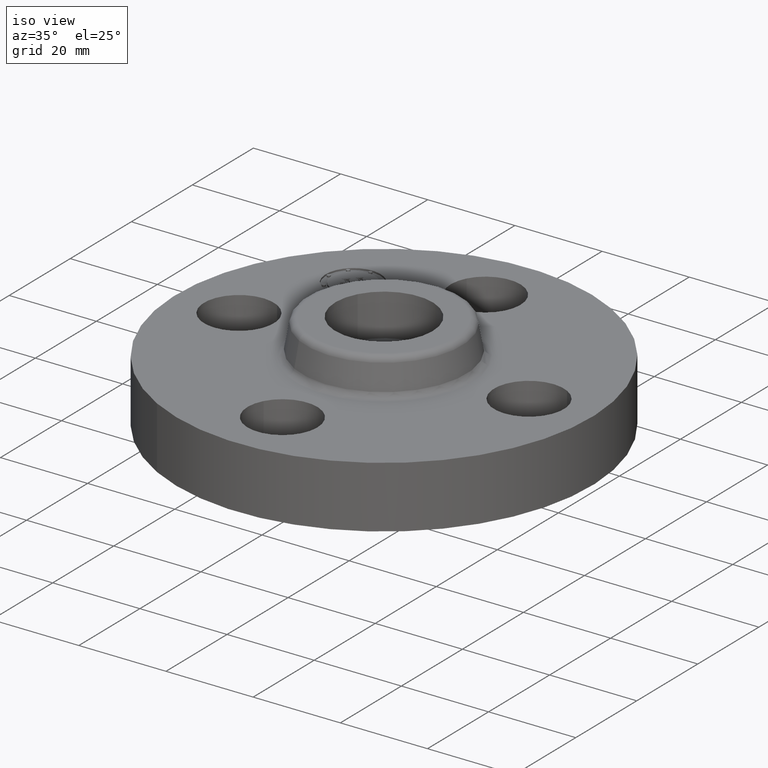
[diagram: clean part render]
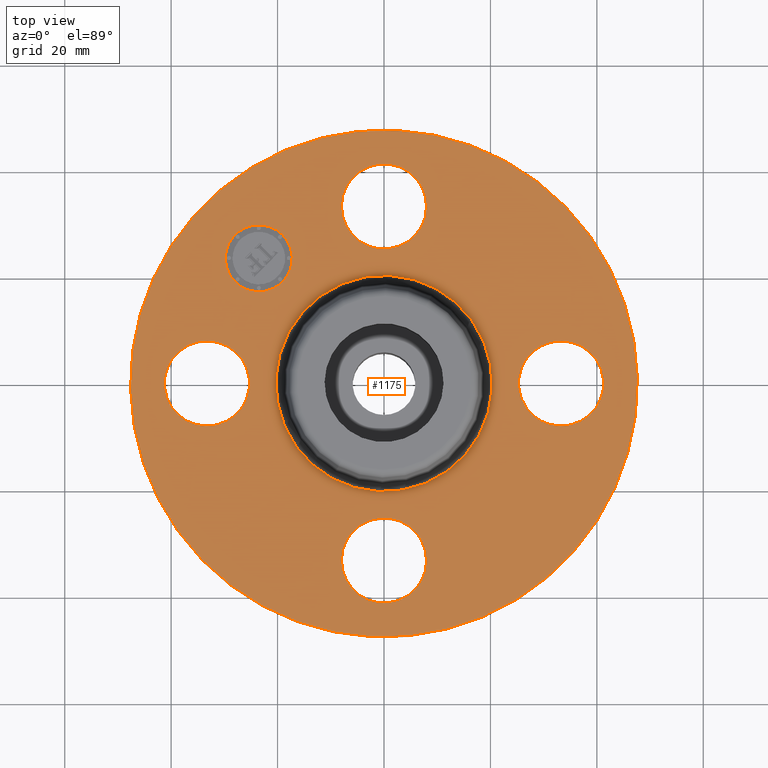
[diagram: tour spotlight — one face highlighted and labeled with its STEP entity id]
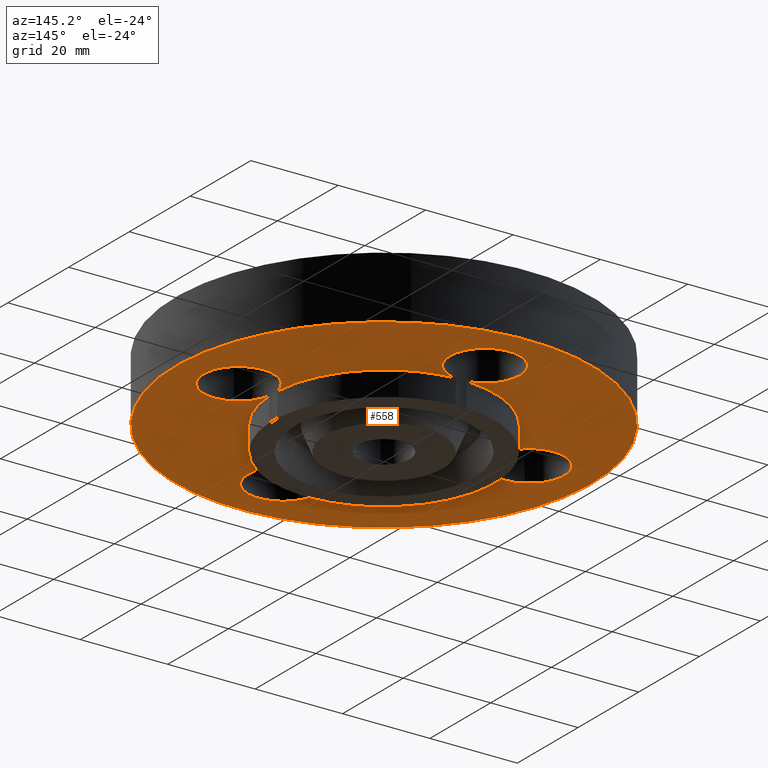
[diagram: tour spotlight — one face highlighted and labeled with its STEP entity id]
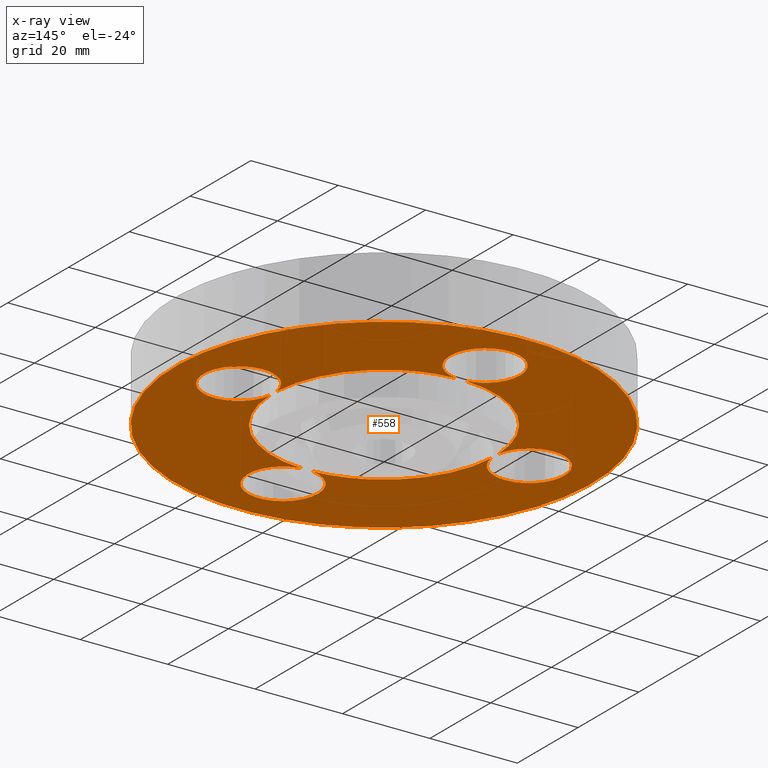
[diagram: x-ray of the same camera — body ghosted, this tour face saturated]
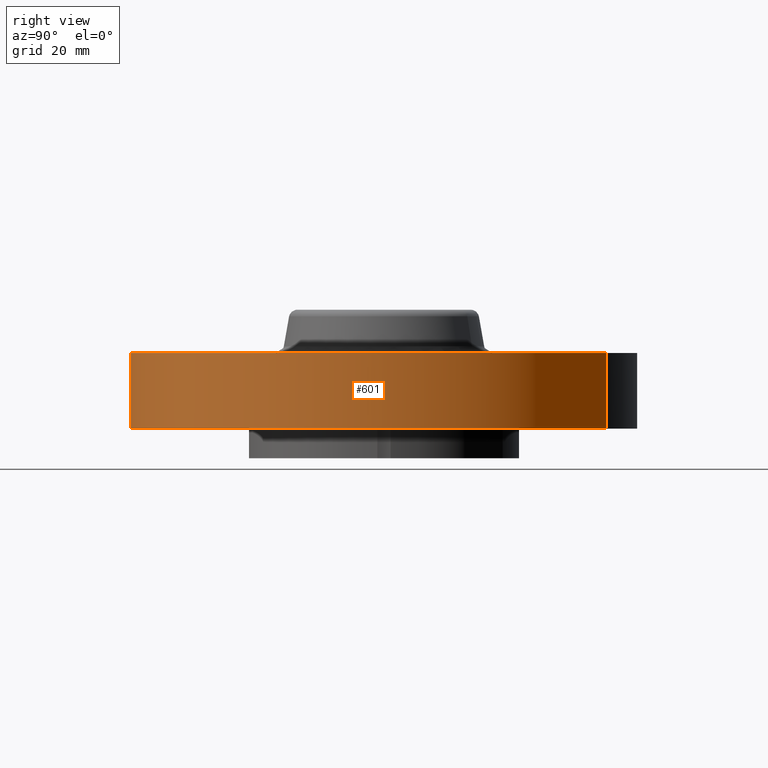
[diagram: tour spotlight — one face highlighted and labeled with its STEP entity id]
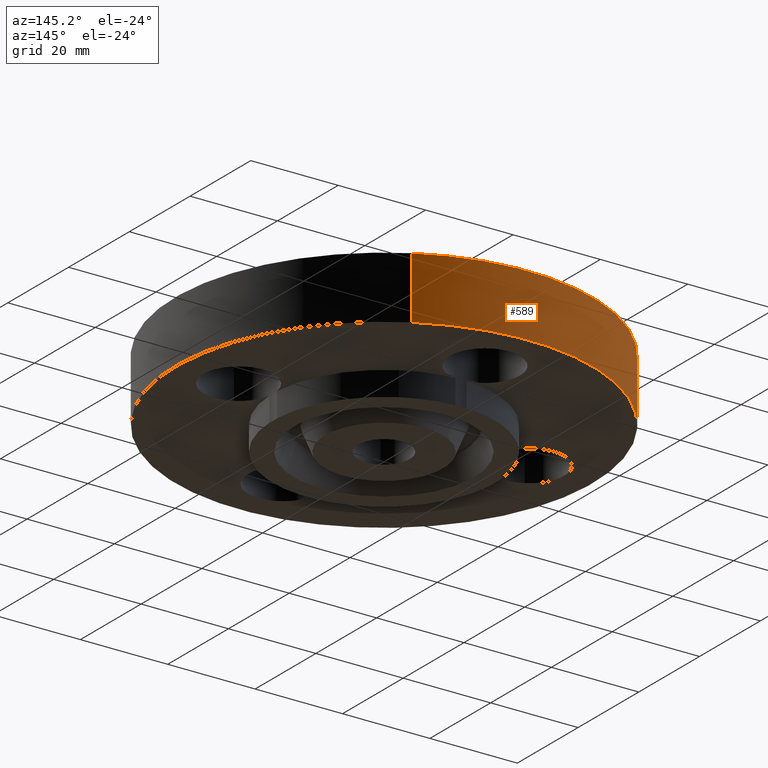
[diagram: tour spotlight — one face highlighted and labeled with its STEP entity id]
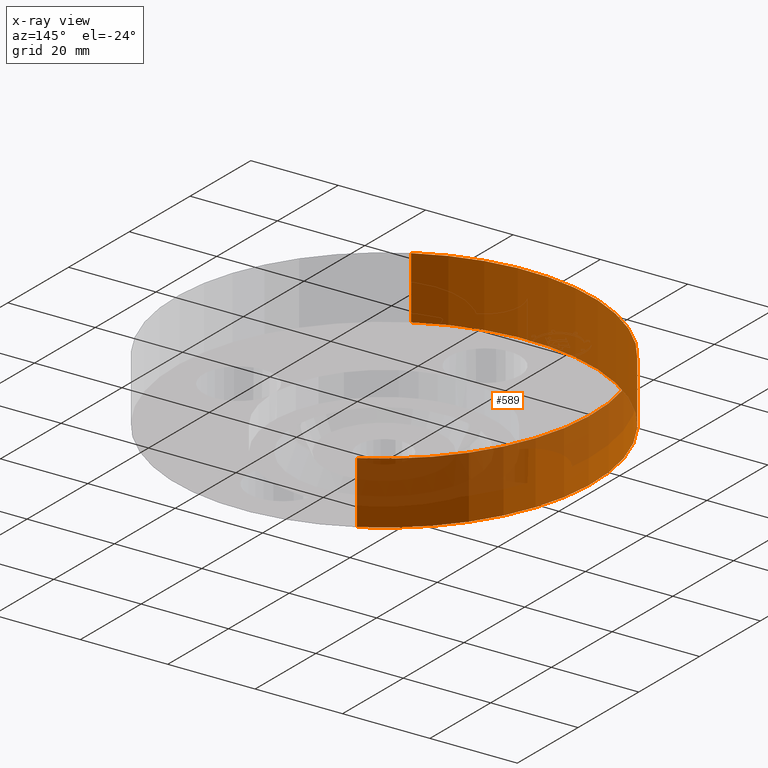
[diagram: x-ray of the same camera — body ghosted, this tour face saturated]
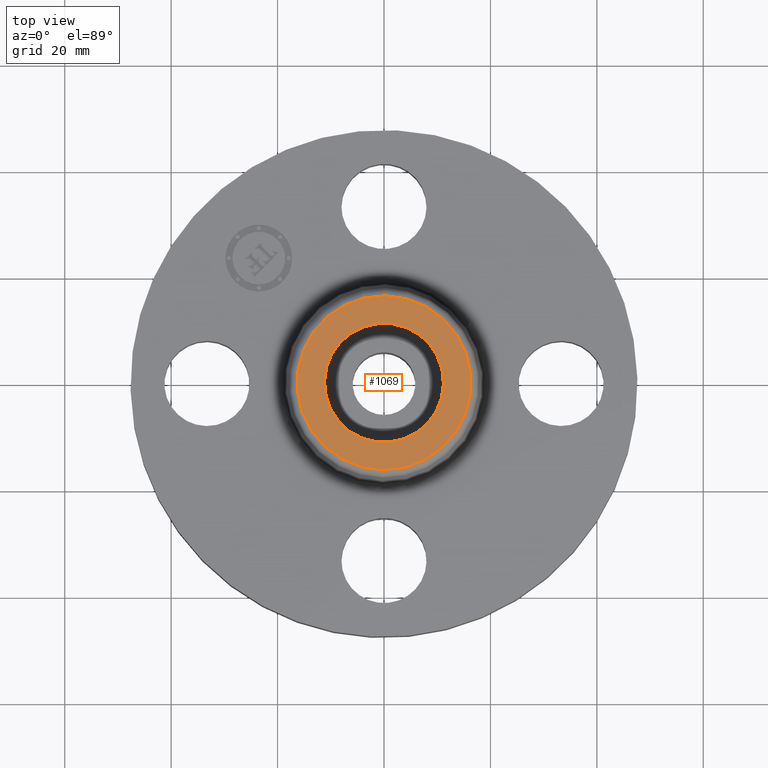
[diagram: tour spotlight — one face highlighted and labeled with its STEP entity id]
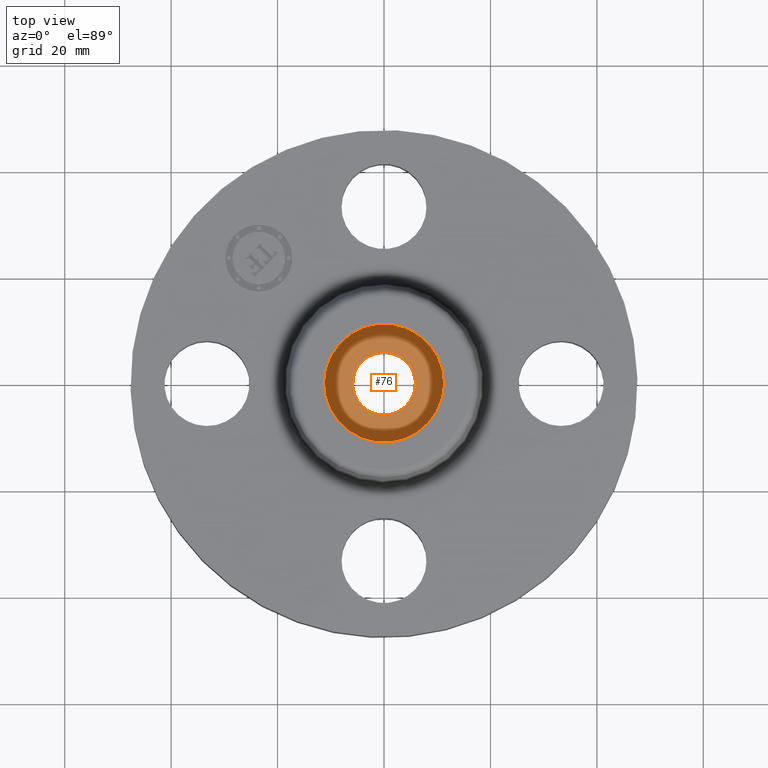
[diagram: tour spotlight — one face highlighted and labeled with its STEP entity id]
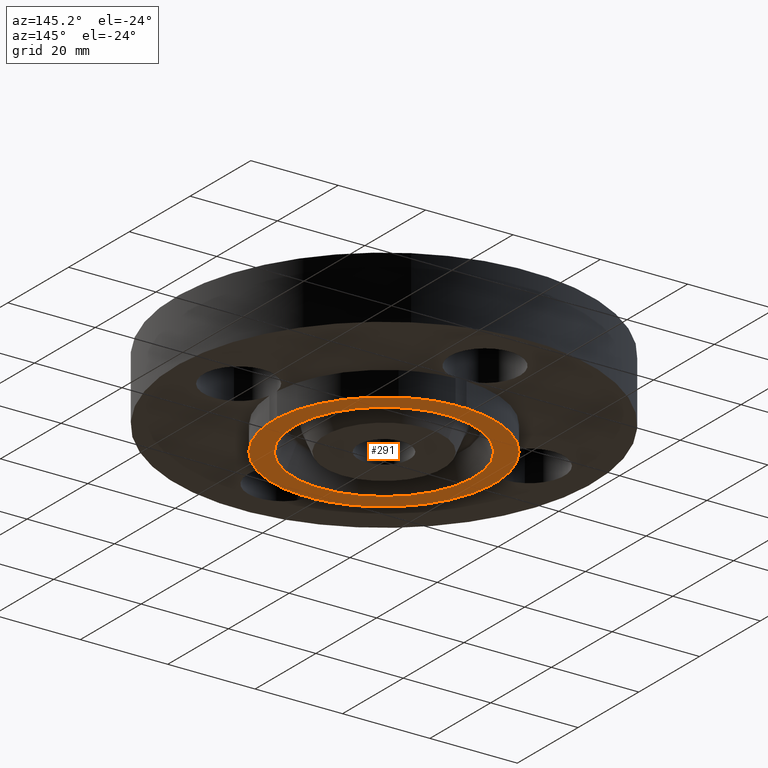
[diagram: tour spotlight — one face highlighted and labeled with its STEP entity id]
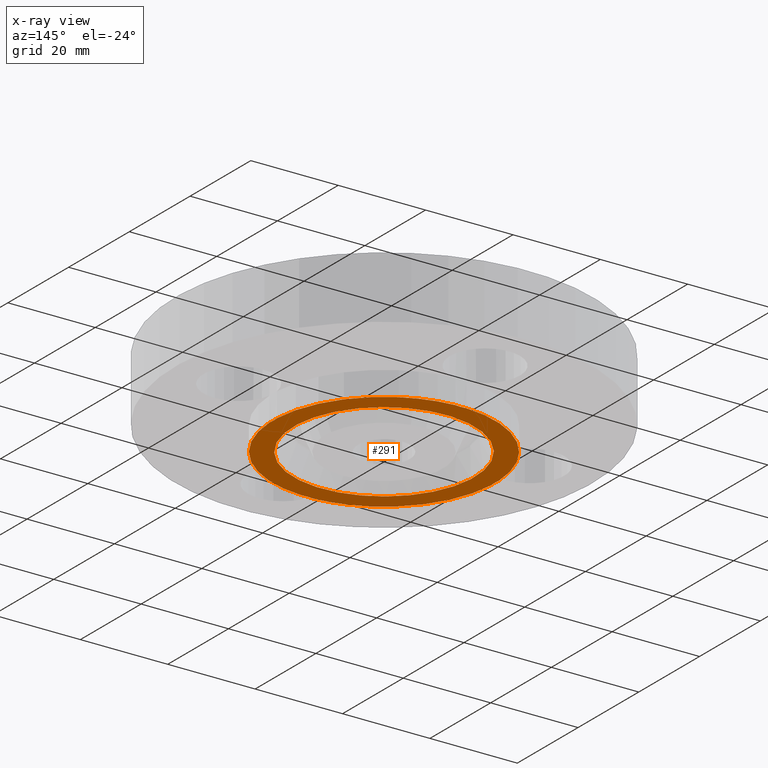
[diagram: x-ray of the same camera — body ghosted, this tour face saturated]
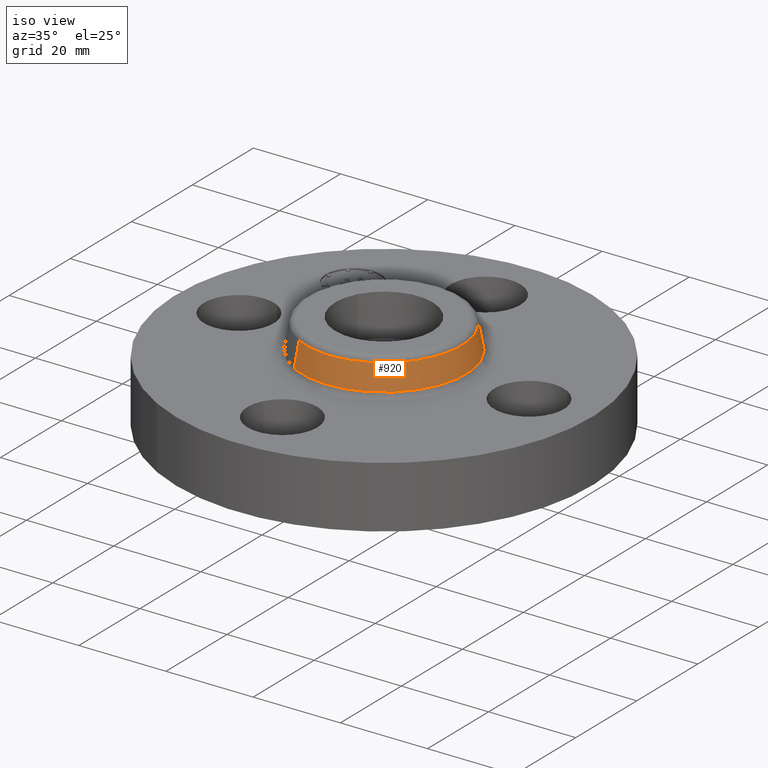
[diagram: tour spotlight — one face highlighted and labeled with its STEP entity id]
A machine part: a face-by-face anatomy tour. The part has 426 B-rep faces; the first image is the clean iso view, then the 8 largest visible faces are spotlighted one at a time (largest first), each with its STEP entity span.

Face 1 — top view, entity #1175. In plain terms, the highlighted planar face has unit normal (0, 0, -1).
Definition (entity closure, byte-faithful):
#573=AXIS2_PLACEMENT_3D('Circle Axis2P3D',#571,#572,$) ;
#592=AXIS2_PLACEMENT_3D('Circle Axis2P3D',#590,#591,$) ;
#623=AXIS2_PLACEMENT_3D('Circle Axis2P3D',#621,#622,$) ;
#654=AXIS2_PLACEMENT_3D('Circle Axis2P3D',#652,#653,$) ;
#685=AXIS2_PLACEMENT_3D('Circle Axis2P3D',#683,#684,$) ;
#716=AXIS2_PLACEMENT_3D('Circle Axis2P3D',#714,#715,$) ;
#728=AXIS2_PLACEMENT_3D('Circle Axis2P3D',#726,#727,$) ;
#744=AXIS2_PLACEMENT_3D('Circle Axis2P3D',#742,#743,$) ;
#760=AXIS2_PLACEMENT_3D('Circle Axis2P3D',#758,#759,$) ;
#776=AXIS2_PLACEMENT_3D('Circle Axis2P3D',#774,#775,$) ;
#797=AXIS2_PLACEMENT_3D('Circle Axis2P3D',#795,#796,$) ;
#832=AXIS2_PLACEMENT_3D('Circle Axis2P3D',#830,#831,$) ;
#1131=AXIS2_PLACEMENT_3D('Plane Axis2P3D',#1128,#1129,#1130) ;
#1159=AXIS2_PLACEMENT_3D('Circle Axis2P3D',#1157,#1158,$) ;
#1168=AXIS2_PLACEMENT_3D('Circle Axis2P3D',#1166,#1167,$) ;
#568=CARTESIAN_POINT('Vertex',(-0.898922884886,-1.64546730355,0.560000000002)) ;
#571=CARTESIAN_POINT('Axis2P3D Location',(0.,0.,0.560000000002)) ;
#575=CARTESIAN_POINT('Vertex',(0.898922884886,1.64546730355,0.560000000002)) ;
#590=CARTESIAN_POINT('Axis2P3D Location',(0.,0.,0.560000000002)) ;
#611=CARTESIAN_POINT('Vertex',(0.276438506997,-1.46101904467,0.560000000002)) ;
#618=CARTESIAN_POINT('Vertex',(-0.276438506997,-1.15898095534,0.560000000002)) ;
#621=CARTESIAN_POINT('Axis2P3D Location',(1.60428730689E-016,-1.31000000001,0.560000000002)) ;
#642=CARTESIAN_POINT('Vertex',(-1.46101904467,-0.276438506997,0.560000000002)) ;
#649=CARTESIAN_POINT('Vertex',(-1.15898095534,0.276438506997,0.560000000002)) ;
#652=CARTESIAN_POINT('Axis2P3D Location',(-1.31000000001,-2.40643096033E-016,0.560000000002)) ;
#673=CARTESIAN_POINT('Vertex',(-0.276438506997,1.46101904467,0.560000000002)) ;
#680=CARTESIAN_POINT('Vertex',(0.276438506997,1.15898095534,0.560000000002)) ;
#683=CARTESIAN_POINT('Axis2P3D Location',(0.,1.31000000001,0.560000000002)) ;
#704=CARTESIAN_POINT('Vertex',(1.46101904467,0.276438506997,0.560000000002)) ;
#711=CARTESIAN_POINT('Vertex',(1.15898095534,-0.276438506997,0.560000000002)) ;
#714=CARTESIAN_POINT('Axis2P3D Location',(1.31000000001,8.02143653445E-017,0.560000000002)) ;
#726=CARTESIAN_POINT('Axis2P3D Location',(1.31000000001,8.02143653445E-017,0.560000000002)) ;
#742=CARTESIAN_POINT('Axis2P3D Location',(0.,1.31000000001,0.560000000002)) ;
#758=CARTESIAN_POINT('Axis2P3D Location',(-1.31000000001,-2.40643096033E-016,0.560000000002)) ;
#774=CARTESIAN_POINT('Axis2P3D Location',(1.60428730689E-016,-1.31000000001,0.560000000002)) ;
#795=CARTESIAN_POINT('Axis2P3D Location',(0.,0.,0.560000000002)) ;
#799=CARTESIAN_POINT('Vertex',(0.383706301512,0.702369673661,0.560000000002)) ;
#801=CARTESIAN_POINT('Vertex',(-0.383706301512,-0.702369673661,0.560000000002)) ;
#830=CARTESIAN_POINT('Axis2P3D Location',(0.,0.,0.560000000002)) ;
#1128=CARTESIAN_POINT('Axis2P3D Location',(0.,1.87500000001,0.560000000002)) ;
#1157=CARTESIAN_POINT('Axis2P3D Location',(-0.926309883358,0.926309883358,0.560000000002)) ;
#1161=CARTESIAN_POINT('Vertex',(-1.1013188117,0.751300955014,0.560000000002)) ;
#1163=CARTESIAN_POINT('Vertex',(-0.751300955014,1.1013188117,0.560000000002)) ;
#1166=CARTESIAN_POINT('Axis2P3D Location',(-0.926309883358,0.926309883358,0.560000000002)) ;
#572=DIRECTION('Axis2P3D Direction',(0.,0.,-0.0393700787402)) ;
#591=DIRECTION('Axis2P3D Direction',(0.,0.,-0.0393700787402)) ;
#622=DIRECTION('Axis2P3D Direction',(-0.,0.,-0.0393700787402)) ;
#653=DIRECTION('Axis2P3D Direction',(0.,0.,-0.0393700787402)) ;
#684=DIRECTION('Axis2P3D Direction',(0.,-0.,-0.0393700787402)) ;
#715=DIRECTION('Axis2P3D Direction',(0.,-0.,-0.0393700787402)) ;
#727=DIRECTION('Axis2P3D Direction',(0.,-0.,-0.0393700787402)) ;
#743=DIRECTION('Axis2P3D Direction',(0.,-0.,-0.0393700787402)) ;
#759=DIRECTION('Axis2P3D Direction',(0.,0.,-0.0393700787402)) ;
#775=DIRECTION('Axis2P3D Direction',(-0.,0.,-0.0393700787402)) ;
#796=DIRECTION('Axis2P3D Direction',(0.,0.,-0.0393700787402)) ;
#831=DIRECTION('Axis2P3D Direction',(0.,0.,-0.0393700787402)) ;
#1129=DIRECTION('Axis2P3D Direction',(0.,0.,-0.0393700787402)) ;
#1130=DIRECTION('Axis2P3D XDirection',(0.0393700787402,0.,0.)) ;
#1158=DIRECTION('Axis2P3D Direction',(0.,0.,-0.0393700787402)) ;
#1167=DIRECTION('Axis2P3D Direction',(0.,0.,-0.0393700787402)) ;
#1134=ORIENTED_EDGE('',*,*,#594,.F.) ;
#1135=ORIENTED_EDGE('',*,*,#577,.F.) ;
#1138=ORIENTED_EDGE('',*,*,#687,.T.) ;
#1139=ORIENTED_EDGE('',*,*,#746,.T.) ;
#1142=ORIENTED_EDGE('',*,*,#834,.T.) ;
#1143=ORIENTED_EDGE('',*,*,#803,.T.) ;
#1146=ORIENTED_EDGE('',*,*,#730,.T.) ;
#1147=ORIENTED_EDGE('',*,*,#718,.T.) ;
#1150=ORIENTED_EDGE('',*,*,#778,.T.) ;
#1151=ORIENTED_EDGE('',*,*,#625,.T.) ;
#1154=ORIENTED_EDGE('',*,*,#762,.T.) ;
#1155=ORIENTED_EDGE('',*,*,#656,.T.) ;
#1172=ORIENTED_EDGE('',*,*,#1165,.T.) ;
#1173=ORIENTED_EDGE('',*,*,#1170,.T.) ;
#1140=FACE_BOUND('',#1137,.T.) ;
#1144=FACE_BOUND('',#1141,.T.) ;
#1148=FACE_BOUND('',#1145,.T.) ;
#1152=FACE_BOUND('',#1149,.T.) ;
#1156=FACE_BOUND('',#1153,.T.) ;
#1174=FACE_BOUND('',#1171,.T.) ;
#1175=ADVANCED_FACE('PartBody',(#1136,#1140,#1144,#1148,#1152,#1156,#1174),#1132,.F.) ;
#574=CIRCLE('generated circle',#573,1.87500000001) ;
#593=CIRCLE('generated circle',#592,1.87500000001) ;
#624=CIRCLE('generated circle',#623,0.315000000001) ;
#655=CIRCLE('generated circle',#654,0.315000000001) ;
#686=CIRCLE('generated circle',#685,0.315000000001) ;
#717=CIRCLE('generated circle',#716,0.315000000001) ;
#729=CIRCLE('generated circle',#728,0.315000000001) ;
#745=CIRCLE('generated circle',#744,0.315000000001) ;
#761=CIRCLE('generated circle',#760,0.315000000001) ;
#777=CIRCLE('generated circle',#776,0.315000000001) ;
#798=CIRCLE('generated circle',#797,0.800345977874) ;
#833=CIRCLE('generated circle',#832,0.800345977874) ;
#1160=CIRCLE('generated circle',#1159,0.247500000001) ;
#1169=CIRCLE('generated circle',#1168,0.247500000001) ;
#577=EDGE_CURVE('',#569,#576,#574,.T.) ;
#594=EDGE_CURVE('',#576,#569,#593,.T.) ;
#625=EDGE_CURVE('',#612,#619,#624,.T.) ;
#656=EDGE_CURVE('',#643,#650,#655,.T.) ;
#687=EDGE_CURVE('',#674,#681,#686,.T.) ;
#718=EDGE_CURVE('',#705,#712,#717,.T.) ;
#730=EDGE_CURVE('',#712,#705,#729,.T.) ;
#746=EDGE_CURVE('',#681,#674,#745,.T.) ;
#762=EDGE_CURVE('',#650,#643,#761,.T.) ;
#778=EDGE_CURVE('',#619,#612,#777,.T.) ;
#803=EDGE_CURVE('',#800,#802,#798,.T.) ;
#834=EDGE_CURVE('',#802,#800,#833,.T.) ;
#1165=EDGE_CURVE('',#1162,#1164,#1160,.T.) ;
#1170=EDGE_CURVE('',#1164,#1162,#1169,.T.) ;
#1133=EDGE_LOOP('',(#1134,#1135)) ;
#1137=EDGE_LOOP('',(#1138,#1139)) ;
#1141=EDGE_LOOP('',(#1142,#1143)) ;
#1145=EDGE_LOOP('',(#1146,#1147)) ;
#1149=EDGE_LOOP('',(#1150,#1151)) ;
#1153=EDGE_LOOP('',(#1154,#1155)) ;
#1171=EDGE_LOOP('',(#1172,#1173)) ;
#1136=FACE_OUTER_BOUND('',#1133,.T.) ;
#1132=PLANE('',#1131) ;
#569=VERTEX_POINT('',#568) ;
#576=VERTEX_POINT('',#575) ;
#612=VERTEX_POINT('',#611) ;
#619=VERTEX_POINT('',#618) ;
#643=VERTEX_POINT('',#642) ;
#650=VERTEX_POINT('',#649) ;
#674=VERTEX_POINT('',#673) ;
#681=VERTEX_POINT('',#680) ;
#705=VERTEX_POINT('',#704) ;
#712=VERTEX_POINT('',#711) ;
#800=VERTEX_POINT('',#799) ;
#802=VERTEX_POINT('',#801) ;
#1162=VERTEX_POINT('',#1161) ;
#1164=VERTEX_POINT('',#1163) ;

Face 2 — auxiliary view, entity #558. An x-ray twin of the same camera follows (body ghosted, this face saturated) — the face is partly hidden behind the body. In plain terms, the highlighted planar face has unit normal (0, 0, -1).
Definition (entity closure, byte-faithful):
#306=AXIS2_PLACEMENT_3D('Circle Axis2P3D',#304,#305,$) ;
#325=AXIS2_PLACEMENT_3D('Circle Axis2P3D',#323,#324,$) ;
#351=AXIS2_PLACEMENT_3D('Circle Axis2P3D',#349,#350,$) ;
#370=AXIS2_PLACEMENT_3D('Circle Axis2P3D',#368,#369,$) ;
#396=AXIS2_PLACEMENT_3D('Circle Axis2P3D',#394,#395,$) ;
#422=AXIS2_PLACEMENT_3D('Circle Axis2P3D',#420,#421,$) ;
#442=AXIS2_PLACEMENT_3D('Plane Axis2P3D',#439,#440,#441) ;
#446=AXIS2_PLACEMENT_3D('Circle Axis2P3D',#444,#445,$) ;
#455=AXIS2_PLACEMENT_3D('Circle Axis2P3D',#453,#454,$) ;
#464=AXIS2_PLACEMENT_3D('Circle Axis2P3D',#462,#463,$) ;
#471=AXIS2_PLACEMENT_3D('Circle Axis2P3D',#469,#470,$) ;
#478=AXIS2_PLACEMENT_3D('Circle Axis2P3D',#476,#477,$) ;
#483=AXIS2_PLACEMENT_3D('Circle Axis2P3D',#481,#482,$) ;
#490=AXIS2_PLACEMENT_3D('Circle Axis2P3D',#488,#489,$) ;
#497=AXIS2_PLACEMENT_3D('Circle Axis2P3D',#495,#496,$) ;
#502=AXIS2_PLACEMENT_3D('Circle Axis2P3D',#500,#501,$) ;
#509=AXIS2_PLACEMENT_3D('Circle Axis2P3D',#507,#508,$) ;
#516=AXIS2_PLACEMENT_3D('Circle Axis2P3D',#514,#515,$) ;
#521=AXIS2_PLACEMENT_3D('Circle Axis2P3D',#519,#520,$) ;
#528=AXIS2_PLACEMENT_3D('Circle Axis2P3D',#526,#527,$) ;
#535=AXIS2_PLACEMENT_3D('Circle Axis2P3D',#533,#534,$) ;
#301=CARTESIAN_POINT('Vertex',(0.998807251912,-0.0488269754871,1.39870617276E-016)) ;
#304=CARTESIAN_POINT('Axis2P3D Location',(0.,0.,1.39870617276E-016)) ;
#308=CARTESIAN_POINT('Vertex',(0.0488269754871,-0.998807251912,1.39870617276E-016)) ;
#323=CARTESIAN_POINT('Axis2P3D Location',(0.,0.,1.39870617276E-016)) ;
#327=CARTESIAN_POINT('Vertex',(-0.0488269754871,-0.998807251912,1.39870617276E-016)) ;
#329=CARTESIAN_POINT('Vertex',(-0.479425538606,-0.877582561894,1.39870617276E-016)) ;
#349=CARTESIAN_POINT('Axis2P3D Location',(0.,0.,1.39870617276E-016)) ;
#353=CARTESIAN_POINT('Vertex',(-0.998807251912,-0.0488269754871,1.39870617276E-016)) ;
#368=CARTESIAN_POINT('Axis2P3D Location',(0.,0.,1.39870617276E-016)) ;
#372=CARTESIAN_POINT('Vertex',(-0.998807251912,0.0488269754871,1.39870617276E-016)) ;
#374=CARTESIAN_POINT('Vertex',(-0.0488269754871,0.998807251912,1.39870617276E-016)) ;
#394=CARTESIAN_POINT('Axis2P3D Location',(0.,0.,1.39870617276E-016)) ;
#398=CARTESIAN_POINT('Vertex',(0.0488269754871,0.998807251912,1.39870617276E-016)) ;
#400=CARTESIAN_POINT('Vertex',(0.479425538606,0.877582561894,1.39870617276E-016)) ;
#420=CARTESIAN_POINT('Axis2P3D Location',(0.,0.,1.39870617276E-016)) ;
#424=CARTESIAN_POINT('Vertex',(0.998807251912,0.0488269754871,1.39870617276E-016)) ;
#439=CARTESIAN_POINT('Axis2P3D Location',(0.,1.,0.)) ;
#444=CARTESIAN_POINT('Axis2P3D Location',(0.,0.,0.)) ;
#448=CARTESIAN_POINT('Vertex',(-0.898922884886,-1.64546730355,6.99353086378E-017)) ;
#450=CARTESIAN_POINT('Vertex',(0.898922884886,1.64546730355,6.99353086378E-017)) ;
#453=CARTESIAN_POINT('Axis2P3D Location',(0.,0.,0.)) ;
#462=CARTESIAN_POINT('Axis2P3D Location',(1.31000000001,1.39870617276E-016,0.)) ;
#466=CARTESIAN_POINT('Vertex',(1.15898095534,-0.276438506997,6.99353086378E-017)) ;
#469=CARTESIAN_POINT('Axis2P3D Location',(1.31000000001,0.,0.)) ;
#473=CARTESIAN_POINT('Vertex',(1.46101904467,0.276438506997,0.)) ;
#476=CARTESIAN_POINT('Axis2P3D Location',(1.31000000001,1.39870617276E-016,0.)) ;
#481=CARTESIAN_POINT('Axis2P3D Location',(-8.74191357973E-018,1.31000000001,0.)) ;
#485=CARTESIAN_POINT('Vertex',(0.276438506997,1.15898095534,6.99353086378E-017)) ;
#488=CARTESIAN_POINT('Axis2P3D Location',(-1.74838271595E-017,1.31000000001,0.)) ;
#492=CARTESIAN_POINT('Vertex',(-0.276438506997,1.46101904467,6.99353086378E-017)) ;
#495=CARTESIAN_POINT('Axis2P3D Location',(-8.74191357973E-018,1.31000000001,0.)) ;
#500=CARTESIAN_POINT('Axis2P3D Location',(-1.31000000001,-1.39870617276E-016,0.)) ;
#504=CARTESIAN_POINT('Vertex',(-1.15898095534,0.276438506997,6.99353086378E-017)) ;
#507=CARTESIAN_POINT('Axis2P3D Location',(-1.31000000001,-2.79741234551E-016,0.)) ;
#511=CARTESIAN_POINT('Vertex',(-1.46101904467,-0.276438506997,0.)) ;
#514=CARTESIAN_POINT('Axis2P3D Location',(-1.31000000001,-1.39870617276E-016,0.)) ;
#519=CARTESIAN_POINT('Axis2P3D Location',(1.74838271595E-016,-1.31000000001,0.)) ;
#523=CARTESIAN_POINT('Vertex',(-0.276438506997,-1.15898095534,6.99353086378E-017)) ;
#526=CARTESIAN_POINT('Axis2P3D Location',(0.,-1.31000000001,0.)) ;
#530=CARTESIAN_POINT('Vertex',(0.276438506997,-1.46101904467,0.)) ;
#533=CARTESIAN_POINT('Axis2P3D Location',(1.74838271595E-016,-1.31000000001,0.)) ;
#305=DIRECTION('Axis2P3D Direction',(0.,0.,-0.0393700787402)) ;
#324=DIRECTION('Axis2P3D Direction',(0.,0.,-0.0393700787402)) ;
#350=DIRECTION('Axis2P3D Direction',(0.,0.,-0.0393700787402)) ;
#369=DIRECTION('Axis2P3D Direction',(0.,0.,-0.0393700787402)) ;
#395=DIRECTION('Axis2P3D Direction',(0.,0.,-0.0393700787402)) ;
#421=DIRECTION('Axis2P3D Direction',(0.,0.,-0.0393700787402)) ;
#440=DIRECTION('Axis2P3D Direction',(0.,0.,-0.0393700787402)) ;
#441=DIRECTION('Axis2P3D XDirection',(0.0393700787402,0.,0.)) ;
#445=DIRECTION('Axis2P3D Direction',(0.,0.,-0.0393700787402)) ;
#454=DIRECTION('Axis2P3D Direction',(0.,0.,-0.0393700787402)) ;
#463=DIRECTION('Axis2P3D Direction',(0.,0.,-0.0393700787402)) ;
#470=DIRECTION('Axis2P3D Direction',(0.,0.,-0.0393700787402)) ;
#477=DIRECTION('Axis2P3D Direction',(0.,0.,-0.0393700787402)) ;
#482=DIRECTION('Axis2P3D Direction',(0.,0.,-0.0393700787402)) ;
#489=DIRECTION('Axis2P3D Direction',(0.,0.,-0.0393700787402)) ;
#496=DIRECTION('Axis2P3D Direction',(0.,0.,-0.0393700787402)) ;
#501=DIRECTION('Axis2P3D Direction',(0.,0.,-0.0393700787402)) ;
#508=DIRECTION('Axis2P3D Direction',(0.,0.,-0.0393700787402)) ;
#515=DIRECTION('Axis2P3D Direction',(0.,0.,-0.0393700787402)) ;
#520=DIRECTION('Axis2P3D Direction',(0.,0.,-0.0393700787402)) ;
#527=DIRECTION('Axis2P3D Direction',(0.,0.,-0.0393700787402)) ;
#534=DIRECTION('Axis2P3D Direction',(0.,0.,-0.0393700787402)) ;
#459=ORIENTED_EDGE('',*,*,#452,.T.) ;
#460=ORIENTED_EDGE('',*,*,#457,.T.) ;
#539=ORIENTED_EDGE('',*,*,#310,.F.) ;
#540=ORIENTED_EDGE('',*,*,#468,.F.) ;
#541=ORIENTED_EDGE('',*,*,#475,.F.) ;
#542=ORIENTED_EDGE('',*,*,#480,.F.) ;
#543=ORIENTED_EDGE('',*,*,#426,.F.) ;
#544=ORIENTED_EDGE('',*,*,#402,.F.) ;
#545=ORIENTED_EDGE('',*,*,#487,.F.) ;
#546=ORIENTED_EDGE('',*,*,#494,.F.) ;
#547=ORIENTED_EDGE('',*,*,#499,.F.) ;
#548=ORIENTED_EDGE('',*,*,#376,.F.) ;
#549=ORIENTED_EDGE('',*,*,#506,.F.) ;
#550=ORIENTED_EDGE('',*,*,#513,.F.) ;
#551=ORIENTED_EDGE('',*,*,#518,.F.) ;
#552=ORIENTED_EDGE('',*,*,#355,.F.) ;
#553=ORIENTED_EDGE('',*,*,#331,.F.) ;
#554=ORIENTED_EDGE('',*,*,#525,.F.) ;
#555=ORIENTED_EDGE('',*,*,#532,.F.) ;
#556=ORIENTED_EDGE('',*,*,#537,.F.) ;
#557=FACE_BOUND('',#538,.T.) ;
#558=ADVANCED_FACE('PartBody',(#461,#557),#443,.T.) ;
#307=CIRCLE('generated circle',#306,1.) ;
#326=CIRCLE('generated circle',#325,1.) ;
#352=CIRCLE('generated circle',#351,1.) ;
#371=CIRCLE('generated circle',#370,1.) ;
#397=CIRCLE('generated circle',#396,1.) ;
#423=CIRCLE('generated circle',#422,1.) ;
#447=CIRCLE('generated circle',#446,1.87500000001) ;
#456=CIRCLE('generated circle',#455,1.87500000001) ;
#465=CIRCLE('generated circle',#464,0.315000000001) ;
#472=CIRCLE('generated circle',#471,0.315000000001) ;
#479=CIRCLE('generated circle',#478,0.315000000001) ;
#484=CIRCLE('generated circle',#483,0.315000000001) ;
#491=CIRCLE('generated circle',#490,0.315000000001) ;
#498=CIRCLE('generated circle',#497,0.315000000001) ;
#503=CIRCLE('generated circle',#502,0.315000000001) ;
#510=CIRCLE('generated circle',#509,0.315000000001) ;
#517=CIRCLE('generated circle',#516,0.315000000001) ;
#522=CIRCLE('generated circle',#521,0.315000000001) ;
#529=CIRCLE('generated circle',#528,0.315000000001) ;
#536=CIRCLE('generated circle',#535,0.315000000001) ;
#310=EDGE_CURVE('',#302,#309,#307,.T.) ;
#331=EDGE_CURVE('',#328,#330,#326,.T.) ;
#355=EDGE_CURVE('',#330,#354,#352,.T.) ;
#376=EDGE_CURVE('',#373,#375,#371,.T.) ;
#402=EDGE_CURVE('',#399,#401,#397,.T.) ;
#426=EDGE_CURVE('',#401,#425,#423,.T.) ;
#452=EDGE_CURVE('',#449,#451,#447,.T.) ;
#457=EDGE_CURVE('',#451,#449,#456,.T.) ;
#468=EDGE_CURVE('',#467,#302,#465,.T.) ;
#475=EDGE_CURVE('',#474,#467,#472,.T.) ;
#480=EDGE_CURVE('',#425,#474,#479,.T.) ;
#487=EDGE_CURVE('',#486,#399,#484,.T.) ;
#494=EDGE_CURVE('',#493,#486,#491,.T.) ;
#499=EDGE_CURVE('',#375,#493,#498,.T.) ;
#506=EDGE_CURVE('',#505,#373,#503,.T.) ;
#513=EDGE_CURVE('',#512,#505,#510,.T.) ;
#518=EDGE_CURVE('',#354,#512,#517,.T.) ;
#525=EDGE_CURVE('',#524,#328,#522,.T.) ;
#532=EDGE_CURVE('',#531,#524,#529,.T.) ;
#537=EDGE_CURVE('',#309,#531,#536,.T.) ;
#458=EDGE_LOOP('',(#459,#460)) ;
#538=EDGE_LOOP('',(#539,#540,#541,#542,#543,#544,#545,#546,#547,#548,#549,#550,#551,#552,#553,#554,#555,#556)) ;
#461=FACE_OUTER_BOUND('',#458,.T.) ;
#443=PLANE('',#442) ;
#302=VERTEX_POINT('',#301) ;
#309=VERTEX_POINT('',#308) ;
#328=VERTEX_POINT('',#327) ;
#330=VERTEX_POINT('',#329) ;
#354=VERTEX_POINT('',#353) ;
#373=VERTEX_POINT('',#372) ;
#375=VERTEX_POINT('',#374) ;
#399=VERTEX_POINT('',#398) ;
#401=VERTEX_POINT('',#400) ;
#425=VERTEX_POINT('',#424) ;
#449=VERTEX_POINT('',#448) ;
#451=VERTEX_POINT('',#450) ;
#467=VERTEX_POINT('',#466) ;
#474=VERTEX_POINT('',#473) ;
#486=VERTEX_POINT('',#485) ;
#493=VERTEX_POINT('',#492) ;
#505=VERTEX_POINT('',#504) ;
#512=VERTEX_POINT('',#511) ;
#524=VERTEX_POINT('',#523) ;
#531=VERTEX_POINT('',#530) ;

Face 3 — right view, entity #601. In plain terms, the highlighted cylindrical surface (partial cylindrical patch) has radius 47.625 mm, axis along (0, 0, -1).
Definition (entity closure, byte-faithful):
#455=AXIS2_PLACEMENT_3D('Circle Axis2P3D',#453,#454,$) ;
#562=AXIS2_PLACEMENT_3D('Cylinder Axis2P3D',#559,#560,#561) ;
#592=AXIS2_PLACEMENT_3D('Circle Axis2P3D',#590,#591,$) ;
#448=CARTESIAN_POINT('Vertex',(-0.898922884886,-1.64546730355,6.99353086378E-017)) ;
#450=CARTESIAN_POINT('Vertex',(0.898922884886,1.64546730355,6.99353086378E-017)) ;
#453=CARTESIAN_POINT('Axis2P3D Location',(0.,0.,0.)) ;
#559=CARTESIAN_POINT('Axis2P3D Location',(0.,0.,0.330500000001)) ;
#564=CARTESIAN_POINT('Line Origine',(-0.898922884886,-1.64546730355,0.280000000001)) ;
#568=CARTESIAN_POINT('Vertex',(-0.898922884886,-1.64546730355,0.560000000002)) ;
#575=CARTESIAN_POINT('Vertex',(0.898922884886,1.64546730355,0.560000000002)) ;
#578=CARTESIAN_POINT('Line Origine',(0.898922884886,1.64546730355,0.280000000001)) ;
#590=CARTESIAN_POINT('Axis2P3D Location',(0.,0.,0.560000000002)) ;
#454=DIRECTION('Axis2P3D Direction',(0.,0.,-0.0393700787402)) ;
#560=DIRECTION('Axis2P3D Direction',(0.,0.,-0.0393700787402)) ;
#561=DIRECTION('Axis2P3D XDirection',(0.0188750212049,0.0345504945626,0.)) ;
#565=DIRECTION('Vector Direction',(0.,0.,-0.0393700787402)) ;
#579=DIRECTION('Vector Direction',(0.,0.,-0.0393700787402)) ;
#591=DIRECTION('Axis2P3D Direction',(0.,0.,-0.0393700787402)) ;
#566=VECTOR('Line Direction',#565,0.0393700787402) ;
#580=VECTOR('Line Direction',#579,0.0393700787402) ;
#596=ORIENTED_EDGE('',*,*,#457,.F.) ;
#597=ORIENTED_EDGE('',*,*,#582,.T.) ;
#598=ORIENTED_EDGE('',*,*,#594,.T.) ;
#599=ORIENTED_EDGE('',*,*,#570,.F.) ;
#601=ADVANCED_FACE('PartBody',(#600),#563,.T.) ;
#456=CIRCLE('generated circle',#455,1.87500000001) ;
#593=CIRCLE('generated circle',#592,1.87500000001) ;
#563=CYLINDRICAL_SURFACE('generated cylinder',#562,1.87500000001) ;
#457=EDGE_CURVE('',#451,#449,#456,.T.) ;
#570=EDGE_CURVE('',#449,#569,#567,.F.) ;
#582=EDGE_CURVE('',#451,#576,#581,.F.) ;
#594=EDGE_CURVE('',#576,#569,#593,.T.) ;
#595=EDGE_LOOP('',(#596,#597,#598,#599)) ;
#600=FACE_OUTER_BOUND('',#595,.T.) ;
#567=LINE('Line',#564,#566) ;
#581=LINE('Line',#578,#580) ;
#449=VERTEX_POINT('',#448) ;
#451=VERTEX_POINT('',#450) ;
#569=VERTEX_POINT('',#568) ;
#576=VERTEX_POINT('',#575) ;

Face 4 — auxiliary view, entity #589. An x-ray twin of the same camera follows (body ghosted, this face saturated) — the face is partly hidden behind the body. In plain terms, the highlighted cylindrical surface (partial cylindrical patch) has radius 47.625 mm, axis along (0, 0, -1).
Definition (entity closure, byte-faithful):
#446=AXIS2_PLACEMENT_3D('Circle Axis2P3D',#444,#445,$) ;
#562=AXIS2_PLACEMENT_3D('Cylinder Axis2P3D',#559,#560,#561) ;
#573=AXIS2_PLACEMENT_3D('Circle Axis2P3D',#571,#572,$) ;
#444=CARTESIAN_POINT('Axis2P3D Location',(0.,0.,0.)) ;
#448=CARTESIAN_POINT('Vertex',(-0.898922884886,-1.64546730355,6.99353086378E-017)) ;
#450=CARTESIAN_POINT('Vertex',(0.898922884886,1.64546730355,6.99353086378E-017)) ;
#559=CARTESIAN_POINT('Axis2P3D Location',(0.,0.,0.330500000001)) ;
#564=CARTESIAN_POINT('Line Origine',(-0.898922884886,-1.64546730355,0.280000000001)) ;
#568=CARTESIAN_POINT('Vertex',(-0.898922884886,-1.64546730355,0.560000000002)) ;
#571=CARTESIAN_POINT('Axis2P3D Location',(0.,0.,0.560000000002)) ;
#575=CARTESIAN_POINT('Vertex',(0.898922884886,1.64546730355,0.560000000002)) ;
#578=CARTESIAN_POINT('Line Origine',(0.898922884886,1.64546730355,0.280000000001)) ;
#445=DIRECTION('Axis2P3D Direction',(0.,0.,-0.0393700787402)) ;
#560=DIRECTION('Axis2P3D Direction',(0.,0.,-0.0393700787402)) ;
#561=DIRECTION('Axis2P3D XDirection',(0.0188750212049,0.0345504945626,0.)) ;
#565=DIRECTION('Vector Direction',(0.,0.,-0.0393700787402)) ;
#572=DIRECTION('Axis2P3D Direction',(0.,0.,-0.0393700787402)) ;
#579=DIRECTION('Vector Direction',(0.,0.,-0.0393700787402)) ;
#566=VECTOR('Line Direction',#565,0.0393700787402) ;
#580=VECTOR('Line Direction',#579,0.0393700787402) ;
#584=ORIENTED_EDGE('',*,*,#452,.F.) ;
#585=ORIENTED_EDGE('',*,*,#570,.T.) ;
#586=ORIENTED_EDGE('',*,*,#577,.T.) ;
#587=ORIENTED_EDGE('',*,*,#582,.F.) ;
#589=ADVANCED_FACE('PartBody',(#588),#563,.T.) ;
#447=CIRCLE('generated circle',#446,1.87500000001) ;
#574=CIRCLE('generated circle',#573,1.87500000001) ;
#563=CYLINDRICAL_SURFACE('generated cylinder',#562,1.87500000001) ;
#452=EDGE_CURVE('',#449,#451,#447,.T.) ;
#570=EDGE_CURVE('',#449,#569,#567,.F.) ;
#577=EDGE_CURVE('',#569,#576,#574,.T.) ;
#582=EDGE_CURVE('',#451,#576,#581,.F.) ;
#583=EDGE_LOOP('',(#584,#585,#586,#587)) ;
#588=FACE_OUTER_BOUND('',#583,.T.) ;
#567=LINE('Line',#564,#566) ;
#581=LINE('Line',#578,#580) ;
#449=VERTEX_POINT('',#448) ;
#451=VERTEX_POINT('',#450) ;
#569=VERTEX_POINT('',#568) ;
#576=VERTEX_POINT('',#575) ;

Face 5 — top view, entity #1069. In plain terms, the highlighted planar face has unit normal (0, 0, -1).
Definition (entity closure, byte-faithful):
#990=AXIS2_PLACEMENT_3D('Circle Axis2P3D',#988,#989,$) ;
#1009=AXIS2_PLACEMENT_3D('Circle Axis2P3D',#1007,#1008,$) ;
#1045=AXIS2_PLACEMENT_3D('Plane Axis2P3D',#1042,#1043,#1044) ;
#1053=AXIS2_PLACEMENT_3D('Circle Axis2P3D',#1051,#1052,$) ;
#1062=AXIS2_PLACEMENT_3D('Circle Axis2P3D',#1060,#1061,$) ;
#985=CARTESIAN_POINT('Vertex',(0.308380595934,0.564486894472,0.880000000004)) ;
#988=CARTESIAN_POINT('Axis2P3D Location',(0.,0.,0.880000000004)) ;
#992=CARTESIAN_POINT('Vertex',(-0.308380595934,-0.564486894472,0.880000000004)) ;
#1007=CARTESIAN_POINT('Axis2P3D Location',(0.,0.,0.880000000004)) ;
#1042=CARTESIAN_POINT('Axis2P3D Location',(0.,0.643229388305,0.880000000004)) ;
#1051=CARTESIAN_POINT('Axis2P3D Location',(6.99353086378E-017,-1.39870617276E-016,0.880000000004)) ;
#1055=CARTESIAN_POINT('Vertex',(-0.386136327233,0.210947236987,0.880000000004)) ;
#1057=CARTESIAN_POINT('Vertex',(0.386136327233,-0.210947236987,0.880000000004)) ;
#1060=CARTESIAN_POINT('Axis2P3D Location',(8.74191357973E-017,-1.39870617276E-016,0.880000000004)) ;
#989=DIRECTION('Axis2P3D Direction',(0.,0.,-0.0393700787402)) ;
#1008=DIRECTION('Axis2P3D Direction',(0.,0.,-0.0393700787402)) ;
#1043=DIRECTION('Axis2P3D Direction',(0.,0.,-0.0393700787402)) ;
#1044=DIRECTION('Axis2P3D XDirection',(0.0393700787402,0.,0.)) ;
#1052=DIRECTION('Axis2P3D Direction',(0.,0.,-0.0393700787402)) ;
#1061=DIRECTION('Axis2P3D Direction',(0.,0.,-0.0393700787402)) ;
#1048=ORIENTED_EDGE('',*,*,#994,.F.) ;
#1049=ORIENTED_EDGE('',*,*,#1011,.F.) ;
#1066=ORIENTED_EDGE('',*,*,#1059,.T.) ;
#1067=ORIENTED_EDGE('',*,*,#1064,.T.) ;
#1068=FACE_BOUND('',#1065,.T.) ;
#1069=ADVANCED_FACE('PartBody',(#1050,#1068),#1046,.F.) ;
#991=CIRCLE('generated circle',#990,0.643229388305) ;
#1010=CIRCLE('generated circle',#1009,0.643229388305) ;
#1054=CIRCLE('generated circle',#1053,0.440000000002) ;
#1063=CIRCLE('generated circle',#1062,0.440000000002) ;
#994=EDGE_CURVE('',#986,#993,#991,.T.) ;
#1011=EDGE_CURVE('',#993,#986,#1010,.T.) ;
#1059=EDGE_CURVE('',#1056,#1058,#1054,.T.) ;
#1064=EDGE_CURVE('',#1058,#1056,#1063,.T.) ;
#1047=EDGE_LOOP('',(#1048,#1049)) ;
#1065=EDGE_LOOP('',(#1066,#1067)) ;
#1050=FACE_OUTER_BOUND('',#1047,.T.) ;
#1046=PLANE('',#1045) ;
#986=VERTEX_POINT('',#985) ;
#993=VERTEX_POINT('',#992) ;
#1056=VERTEX_POINT('',#1055) ;
#1058=VERTEX_POINT('',#1057) ;

Face 6 — top view, entity #76. In plain terms, the highlighted planar face has unit normal (0, 0, -1).
Definition (entity closure, byte-faithful):
#38=AXIS2_PLACEMENT_3D('Plane Axis2P3D',#35,#36,#37) ;
#42=AXIS2_PLACEMENT_3D('Circle Axis2P3D',#40,#41,$) ;
#51=AXIS2_PLACEMENT_3D('Circle Axis2P3D',#49,#50,$) ;
#60=AXIS2_PLACEMENT_3D('Circle Axis2P3D',#58,#59,$) ;
#69=AXIS2_PLACEMENT_3D('Circle Axis2P3D',#67,#68,$) ;
#35=CARTESIAN_POINT('Axis2P3D Location',(1.04902962957E-016,-6.99353086378E-017,0.500000000002)) ;
#40=CARTESIAN_POINT('Axis2P3D Location',(1.04902962957E-016,-6.99353086378E-017,0.500000000002)) ;
#44=CARTESIAN_POINT('Vertex',(-0.386136327233,0.210947236987,0.500000000002)) ;
#46=CARTESIAN_POINT('Vertex',(0.386136327233,-0.210947236987,0.500000000002)) ;
#49=CARTESIAN_POINT('Axis2P3D Location',(1.04902962957E-016,-6.99353086378E-017,0.500000000002)) ;
#58=CARTESIAN_POINT('Axis2P3D Location',(3.49676543189E-017,1.74838271595E-017,0.500000000002)) ;
#62=CARTESIAN_POINT('Vertex',(0.111226724957,0.203599154359,0.500000000002)) ;
#64=CARTESIAN_POINT('Vertex',(-0.111226724957,-0.203599154359,0.500000000002)) ;
#67=CARTESIAN_POINT('Axis2P3D Location',(1.74838271595E-017,-1.74838271595E-017,0.500000000002)) ;
#36=DIRECTION('Axis2P3D Direction',(0.,0.,-0.0393700787402)) ;
#37=DIRECTION('Axis2P3D XDirection',(0.0393700787402,0.,0.)) ;
#41=DIRECTION('Axis2P3D Direction',(0.,0.,-0.0393700787402)) ;
#50=DIRECTION('Axis2P3D Direction',(0.,0.,-0.0393700787402)) ;
#59=DIRECTION('Axis2P3D Direction',(0.,0.,-0.0393700787402)) ;
#68=DIRECTION('Axis2P3D Direction',(0.,0.,-0.0393700787402)) ;
#55=ORIENTED_EDGE('',*,*,#48,.F.) ;
#56=ORIENTED_EDGE('',*,*,#53,.F.) ;
#73=ORIENTED_EDGE('',*,*,#66,.T.) ;
#74=ORIENTED_EDGE('',*,*,#71,.T.) ;
#75=FACE_BOUND('',#72,.T.) ;
#76=ADVANCED_FACE('PartBody',(#57,#75),#39,.F.) ;
#43=CIRCLE('generated circle',#42,0.440000000002) ;
#52=CIRCLE('generated circle',#51,0.440000000002) ;
#61=CIRCLE('generated circle',#60,0.232000000001) ;
#70=CIRCLE('generated circle',#69,0.232000000001) ;
#48=EDGE_CURVE('',#45,#47,#43,.T.) ;
#53=EDGE_CURVE('',#47,#45,#52,.T.) ;
#66=EDGE_CURVE('',#63,#65,#61,.T.) ;
#71=EDGE_CURVE('',#65,#63,#70,.T.) ;
#54=EDGE_LOOP('',(#55,#56)) ;
#72=EDGE_LOOP('',(#73,#74)) ;
#57=FACE_OUTER_BOUND('',#54,.T.) ;
#39=PLANE('',#38) ;
#45=VERTEX_POINT('',#44) ;
#47=VERTEX_POINT('',#46) ;
#63=VERTEX_POINT('',#62) ;
#65=VERTEX_POINT('',#64) ;

Face 7 — auxiliary view, entity #291. An x-ray twin of the same camera follows (body ghosted, this face saturated) — the face is partly hidden behind the body. In plain terms, the highlighted planar face has unit normal (0, 0, -1).
Definition (entity closure, byte-faithful):
#123=AXIS2_PLACEMENT_3D('Plane Axis2P3D',#120,#121,#122) ;
#193=AXIS2_PLACEMENT_3D('Circle Axis2P3D',#191,#192,$) ;
#202=AXIS2_PLACEMENT_3D('Circle Axis2P3D',#200,#201,$) ;
#209=AXIS2_PLACEMENT_3D('Circle Axis2P3D',#207,#208,$) ;
#216=AXIS2_PLACEMENT_3D('Circle Axis2P3D',#214,#215,$) ;
#223=AXIS2_PLACEMENT_3D('Circle Axis2P3D',#221,#222,$) ;
#230=AXIS2_PLACEMENT_3D('Circle Axis2P3D',#228,#229,$) ;
#237=AXIS2_PLACEMENT_3D('Circle Axis2P3D',#235,#236,$) ;
#244=AXIS2_PLACEMENT_3D('Circle Axis2P3D',#242,#243,$) ;
#251=AXIS2_PLACEMENT_3D('Circle Axis2P3D',#249,#250,$) ;
#258=AXIS2_PLACEMENT_3D('Circle Axis2P3D',#256,#257,$) ;
#275=AXIS2_PLACEMENT_3D('Circle Axis2P3D',#273,#274,$) ;
#284=AXIS2_PLACEMENT_3D('Circle Axis2P3D',#282,#283,$) ;
#120=CARTESIAN_POINT('Axis2P3D Location',(0.,0.232000000001,-0.219000000001)) ;
#191=CARTESIAN_POINT('Axis2P3D Location',(0.,0.,-0.219000000001)) ;
#195=CARTESIAN_POINT('Vertex',(0.998807251912,-0.0488269754871,-0.219000000001)) ;
#197=CARTESIAN_POINT('Vertex',(0.0488269754871,-0.998807251912,-0.219000000001)) ;
#200=CARTESIAN_POINT('Axis2P3D Location',(1.22386790116E-016,-1.31000000001,-0.219000000001)) ;
#204=CARTESIAN_POINT('Vertex',(-0.0488269754871,-0.998807251912,-0.219000000001)) ;
#207=CARTESIAN_POINT('Axis2P3D Location',(0.,0.,-0.219000000001)) ;
#211=CARTESIAN_POINT('Vertex',(-0.479425538606,-0.877582561894,-0.219000000001)) ;
#214=CARTESIAN_POINT('Axis2P3D Location',(0.,0.,-0.219000000001)) ;
#218=CARTESIAN_POINT('Vertex',(-0.998807251912,-0.0488269754871,-0.219000000001)) ;
#221=CARTESIAN_POINT('Axis2P3D Location',(-1.31000000001,-2.09805925913E-016,-0.219000000001)) ;
#225=CARTESIAN_POINT('Vertex',(-0.998807251912,0.0488269754871,-0.219000000001)) ;
#228=CARTESIAN_POINT('Axis2P3D Location',(0.,0.,-0.219000000001)) ;
#232=CARTESIAN_POINT('Vertex',(-0.0488269754871,0.998807251912,-0.219000000001)) ;
#235=CARTESIAN_POINT('Axis2P3D Location',(1.74838271595E-017,1.31000000001,-0.219000000001)) ;
#239=CARTESIAN_POINT('Vertex',(0.0488269754871,0.998807251912,-0.219000000001)) ;
#242=CARTESIAN_POINT('Axis2P3D Location',(0.,0.,-0.219000000001)) ;
#246=CARTESIAN_POINT('Vertex',(0.479425538606,0.877582561894,-0.219000000001)) ;
#249=CARTESIAN_POINT('Axis2P3D Location',(0.,0.,-0.219000000001)) ;
#253=CARTESIAN_POINT('Vertex',(0.998807251912,0.0488269754871,-0.219000000001)) ;
#256=CARTESIAN_POINT('Axis2P3D Location',(1.31000000001,3.49676543189E-017,-0.219000000001)) ;
#273=CARTESIAN_POINT('Axis2P3D Location',(6.99353086378E-017,3.1470888887E-016,-0.219000000001)) ;
#277=CARTESIAN_POINT('Vertex',(0.389533250117,-0.713035831539,-0.219000000001)) ;
#279=CARTESIAN_POINT('Vertex',(-0.389533250117,0.713035831539,-0.219000000001)) ;
#282=CARTESIAN_POINT('Axis2P3D Location',(-6.99353086378E-017,-1.74838271595E-016,-0.219000000001)) ;
#121=DIRECTION('Axis2P3D Direction',(0.,0.,-0.0393700787402)) ;
#122=DIRECTION('Axis2P3D XDirection',(0.0393700787402,0.,0.)) ;
#192=DIRECTION('Axis2P3D Direction',(0.,0.,-0.0393700787402)) ;
#201=DIRECTION('Axis2P3D Direction',(0.,0.,-0.0393700787402)) ;
#208=DIRECTION('Axis2P3D Direction',(0.,0.,-0.0393700787402)) ;
#215=DIRECTION('Axis2P3D Direction',(0.,0.,-0.0393700787402)) ;
#222=DIRECTION('Axis2P3D Direction',(0.,0.,-0.0393700787402)) ;
#229=DIRECTION('Axis2P3D Direction',(0.,0.,-0.0393700787402)) ;
#236=DIRECTION('Axis2P3D Direction',(0.,0.,-0.0393700787402)) ;
#243=DIRECTION('Axis2P3D Direction',(0.,0.,-0.0393700787402)) ;
#250=DIRECTION('Axis2P3D Direction',(0.,0.,-0.0393700787402)) ;
#257=DIRECTION('Axis2P3D Direction',(0.,0.,-0.0393700787402)) ;
#274=DIRECTION('Axis2P3D Direction',(0.,0.,-0.0393700787402)) ;
#283=DIRECTION('Axis2P3D Direction',(0.,0.,-0.0393700787402)) ;
#262=ORIENTED_EDGE('',*,*,#199,.T.) ;
#263=ORIENTED_EDGE('',*,*,#206,.F.) ;
#264=ORIENTED_EDGE('',*,*,#213,.T.) ;
#265=ORIENTED_EDGE('',*,*,#220,.T.) ;
#266=ORIENTED_EDGE('',*,*,#227,.F.) ;
#267=ORIENTED_EDGE('',*,*,#234,.T.) ;
#268=ORIENTED_EDGE('',*,*,#241,.F.) ;
#269=ORIENTED_EDGE('',*,*,#248,.T.) ;
#270=ORIENTED_EDGE('',*,*,#255,.T.) ;
#271=ORIENTED_EDGE('',*,*,#260,.F.) ;
#288=ORIENTED_EDGE('',*,*,#281,.F.) ;
#289=ORIENTED_EDGE('',*,*,#286,.F.) ;
#290=FACE_BOUND('',#287,.T.) ;
#291=ADVANCED_FACE('PartBody',(#272,#290),#124,.T.) ;
#194=CIRCLE('generated circle',#193,1.) ;
#203=CIRCLE('generated circle',#202,0.315000000001) ;
#210=CIRCLE('generated circle',#209,1.) ;
#217=CIRCLE('generated circle',#216,1.) ;
#224=CIRCLE('generated circle',#223,0.315000000001) ;
#231=CIRCLE('generated circle',#230,1.) ;
#238=CIRCLE('generated circle',#237,0.315000000001) ;
#245=CIRCLE('generated circle',#244,1.) ;
#252=CIRCLE('generated circle',#251,1.) ;
#259=CIRCLE('generated circle',#258,0.315000000001) ;
#276=CIRCLE('generated circle',#275,0.812500000003) ;
#285=CIRCLE('generated circle',#284,0.812500000003) ;
#199=EDGE_CURVE('',#196,#198,#194,.T.) ;
#206=EDGE_CURVE('',#205,#198,#203,.T.) ;
#213=EDGE_CURVE('',#205,#212,#210,.T.) ;
#220=EDGE_CURVE('',#212,#219,#217,.T.) ;
#227=EDGE_CURVE('',#226,#219,#224,.T.) ;
#234=EDGE_CURVE('',#226,#233,#231,.T.) ;
#241=EDGE_CURVE('',#240,#233,#238,.T.) ;
#248=EDGE_CURVE('',#240,#247,#245,.T.) ;
#255=EDGE_CURVE('',#247,#254,#252,.T.) ;
#260=EDGE_CURVE('',#196,#254,#259,.T.) ;
#281=EDGE_CURVE('',#278,#280,#276,.T.) ;
#286=EDGE_CURVE('',#280,#278,#285,.T.) ;
#261=EDGE_LOOP('',(#262,#263,#264,#265,#266,#267,#268,#269,#270,#271)) ;
#287=EDGE_LOOP('',(#288,#289)) ;
#272=FACE_OUTER_BOUND('',#261,.T.) ;
#124=PLANE('',#123) ;
#196=VERTEX_POINT('',#195) ;
#198=VERTEX_POINT('',#197) ;
#205=VERTEX_POINT('',#204) ;
#212=VERTEX_POINT('',#211) ;
#219=VERTEX_POINT('',#218) ;
#226=VERTEX_POINT('',#225) ;
#233=VERTEX_POINT('',#232) ;
#240=VERTEX_POINT('',#239) ;
#247=VERTEX_POINT('',#246) ;
#254=VERTEX_POINT('',#253) ;
#278=VERTEX_POINT('',#277) ;
#280=VERTEX_POINT('',#279) ;

Face 8 — iso view, entity #920. In plain terms, the highlighted conical surface has half-angle 10 deg.
Definition (entity closure, byte-faithful):
#813=AXIS2_PLACEMENT_3D('Circle Axis2P3D',#811,#812,$) ;
#893=AXIS2_PLACEMENT_3D('Cone Axis2P3D',#890,#891,#892) ;
#904=AXIS2_PLACEMENT_3D('Circle Axis2P3D',#902,#903,$) ;
#808=CARTESIAN_POINT('Vertex',(0.355377782267,0.650514667009,0.609581109342)) ;
#811=CARTESIAN_POINT('Axis2P3D Location',(0.,0.,0.609581109342)) ;
#815=CARTESIAN_POINT('Vertex',(-0.355377782267,-0.650514667009,0.609581109342)) ;
#890=CARTESIAN_POINT('Axis2P3D Location',(0.,0.,0.830418890663)) ;
#895=CARTESIAN_POINT('Line Origine',(0.346043448723,0.633428284067,0.720000000003)) ;
#899=CARTESIAN_POINT('Vertex',(0.336709115179,0.616341901124,0.830418890663)) ;
#902=CARTESIAN_POINT('Axis2P3D Location',(0.,0.,0.830418890663)) ;
#906=CARTESIAN_POINT('Vertex',(-0.336709115179,-0.616341901124,0.830418890663)) ;
#909=CARTESIAN_POINT('Line Origine',(-0.346043448723,-0.633428284067,0.720000000003)) ;
#812=DIRECTION('Axis2P3D Direction',(0.,0.,-0.0393700787402)) ;
#891=DIRECTION('Axis2P3D Direction',(0.,0.,-0.0393700787402)) ;
#892=DIRECTION('Axis2P3D XDirection',(-0.0188750212049,-0.0345504945626,0.)) ;
#896=DIRECTION('Vector Direction',(0.00327761303565,0.00599963041829,-0.03877195878)) ;
#903=DIRECTION('Axis2P3D Direction',(0.,0.,-0.0393700787402)) ;
#910=DIRECTION('Vector Direction',(-0.00327761303565,-0.00599963041829,-0.03877195878)) ;
#897=VECTOR('Line Direction',#896,0.0393700787402) ;
#911=VECTOR('Line Direction',#910,0.0393700787402) ;
#915=ORIENTED_EDGE('',*,*,#817,.F.) ;
#916=ORIENTED_EDGE('',*,*,#901,.T.) ;
#917=ORIENTED_EDGE('',*,*,#908,.T.) ;
#918=ORIENTED_EDGE('',*,*,#913,.F.) ;
#920=ADVANCED_FACE('PartBody',(#919),#894,.T.) ;
#814=CIRCLE('generated circle',#813,0.741257512693) ;
#905=CIRCLE('generated circle',#904,0.702317853486) ;
#894=CONICAL_SURFACE('Cone',#893,0.702317853486,0.174532925199) ;
#817=EDGE_CURVE('',#809,#816,#814,.T.) ;
#901=EDGE_CURVE('',#809,#900,#898,.F.) ;
#908=EDGE_CURVE('',#900,#907,#905,.T.) ;
#913=EDGE_CURVE('',#816,#907,#912,.F.) ;
#914=EDGE_LOOP('',(#915,#916,#917,#918)) ;
#919=FACE_OUTER_BOUND('',#914,.T.) ;
#898=LINE('Line',#895,#897) ;
#912=LINE('Line',#909,#911) ;
#809=VERTEX_POINT('',#808) ;
#816=VERTEX_POINT('',#815) ;
#900=VERTEX_POINT('',#899) ;
#907=VERTEX_POINT('',#906) ;